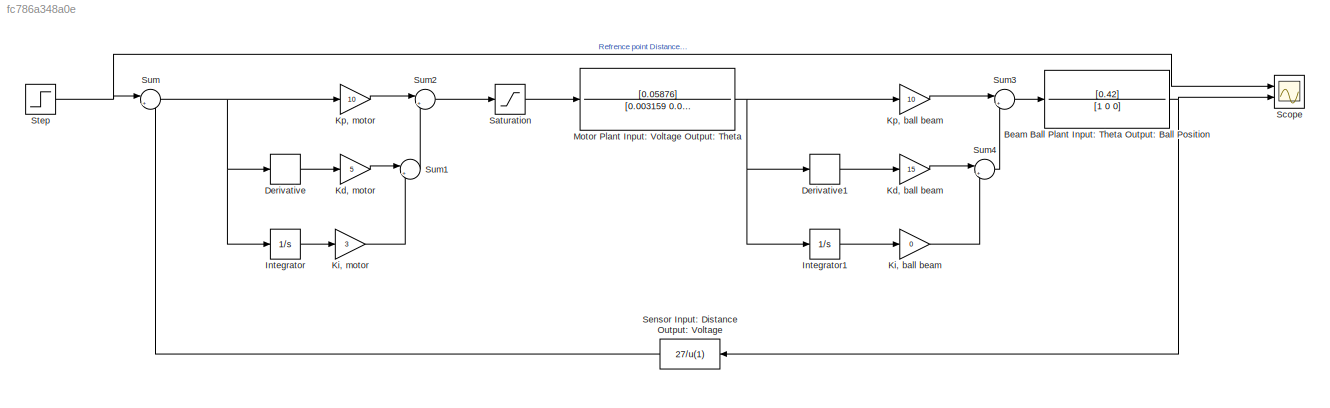
MODEL slx_fc786a348a0e
KIND model
BLOCK [TransferFcn] Beam Ball Plant Input: Theta Output: Ball Position
  Denominator = [1 0 0]
  Numerator = [0.42]
BLOCK [Derivative] Derivative
BLOCK [Derivative] Derivative1
BLOCK [Integrator] Integrator
  Ports = [1, 1]
BLOCK [Integrator] Integrator1
  Ports = [1, 1]
BLOCK [Gain] Kd, ball beam
  Gain = 15
  OutDataTypeStr = Inherit: Inherit via internal rule
  ParamDataTypeStr = Inherit: Inherit via internal rule
  SaturateOnIntegerOverflow = off
BLOCK [Gain] Kd, motor
  Gain = 5
  OutDataTypeStr = Inherit: Inherit via internal rule
  ParamDataTypeStr = Inherit: Inherit via internal rule
  SaturateOnIntegerOverflow = off
BLOCK [Gain] Ki, ball beam
  Gain = 0
  OutDataTypeStr = Inherit: Inherit via internal rule
  ParamDataTypeStr = Inherit: Inherit via internal rule
  SaturateOnIntegerOverflow = off
BLOCK [Gain] Ki, motor
  Gain = 3
  OutDataTypeStr = Inherit: Inherit via internal rule
  ParamDataTypeStr = Inherit: Inherit via internal rule
  SaturateOnIntegerOverflow = off
BLOCK [Gain] Kp, ball beam
  Gain = 10
  OutDataTypeStr = Inherit: Inherit via internal rule
  ParamDataTypeStr = Inherit: Inherit via internal rule
  SaturateOnIntegerOverflow = off
BLOCK [Gain] Kp, motor
  Gain = 10
  OutDataTypeStr = Inherit: Inherit via internal rule
  ParamDataTypeStr = Inherit: Inherit via internal rule
  SaturateOnIntegerOverflow = off
BLOCK [TransferFcn] Motor Plant Input: Voltage Output: Theta
  Denominator = [0.003159 0.003453 0]
  Numerator = [0.05876]
BLOCK [Saturate] Saturation
  InputPortMap = u0
  LowerLimit = -24
  Ports = [1, 1]
  UpperLimit = 24
BLOCK [Scope] Scope
  DataFormat = StructureWithTime
  Floating = off
  NumInputPorts = 2
  Ports = [2]
  SampleTime = 0
  ShowLegends = off
  YMax = 5~5
  YMin = -5~-5
BLOCK [Fcn] Sensor Input: Distance Output: Voltage
  Expr = 27/u(1)
BLOCK [Step] Step
  After = 0.9
  SampleTime = 0
BLOCK [Sum] Sum
  IconShape = round
  InputSameDT = off
  Inputs = |+-
  OutDataTypeStr = Inherit: Inherit via internal rule
  Ports = [2, 1]
  SaturateOnIntegerOverflow = off
BLOCK [Sum] Sum1
  IconShape = round
  InputSameDT = off
  Inputs = |++
  OutDataTypeStr = Inherit: Inherit via internal rule
  Ports = [2, 1]
  SaturateOnIntegerOverflow = off
BLOCK [Sum] Sum2
  IconShape = round
  InputSameDT = off
  Inputs = |++
  OutDataTypeStr = Inherit: Inherit via internal rule
  Ports = [2, 1]
  SaturateOnIntegerOverflow = off
BLOCK [Sum] Sum3
  IconShape = round
  InputSameDT = off
  Inputs = |++
  OutDataTypeStr = Inherit: Inherit via internal rule
  Ports = [2, 1]
  SaturateOnIntegerOverflow = off
BLOCK [Sum] Sum4
  IconShape = round
  InputSameDT = off
  Inputs = |++
  OutDataTypeStr = Inherit: Inherit via internal rule
  Ports = [2, 1]
  SaturateOnIntegerOverflow = off
NET Beam Ball Plant Input: Theta Output: Ball Position:1 -> Scope:2, Sensor Input: Distance Output: Voltage:1
LINE Derivative1:1 -> Kd, ball beam:1
LINE Derivative:1 -> Kd, motor:1
LINE Integrator1:1 -> Ki, ball beam:1
LINE Integrator:1 -> Ki, motor:1
LINE Kd, ball beam:1 -> Sum4:1
LINE Kd, motor:1 -> Sum1:1
LINE Ki, ball beam:1 -> Sum4:2
LINE Ki, motor:1 -> Sum1:2
LINE Kp, ball beam:1 -> Sum3:1
LINE Kp, motor:1 -> Sum2:1
NET Motor Plant Input: Voltage Output: Theta:1 -> Derivative1:1, Integrator1:1, Kp, ball beam:1
LINE Saturation:1 -> Motor Plant Input: Voltage Output: Theta:1
LINE Sensor Input: Distance Output: Voltage:1 -> Sum:2
NET Step:1 -> Scope:1, Sum:1
LINE Sum1:1 -> Sum2:2
LINE Sum2:1 -> Saturation:1
LINE Sum3:1 -> Beam Ball Plant Input: Theta Output: Ball Position:1
LINE Sum4:1 -> Sum3:2
NET Sum:1 -> Derivative:1, Integrator:1, Kp, motor:1
note: NET lines group one-source signal fan-out (src -> all destinations, sorted); 1:1 wires keep LINE
